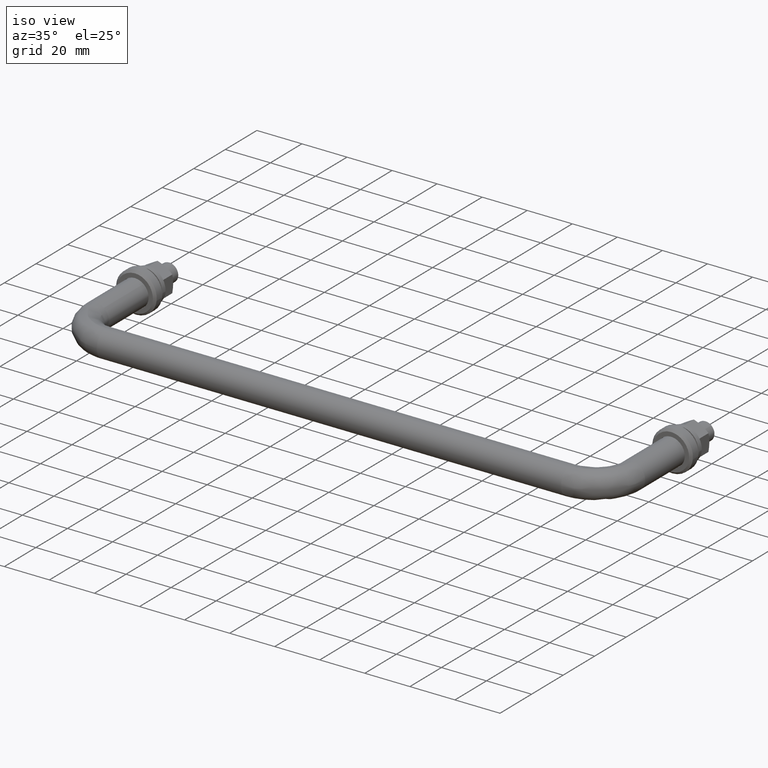
[diagram: clean part render]
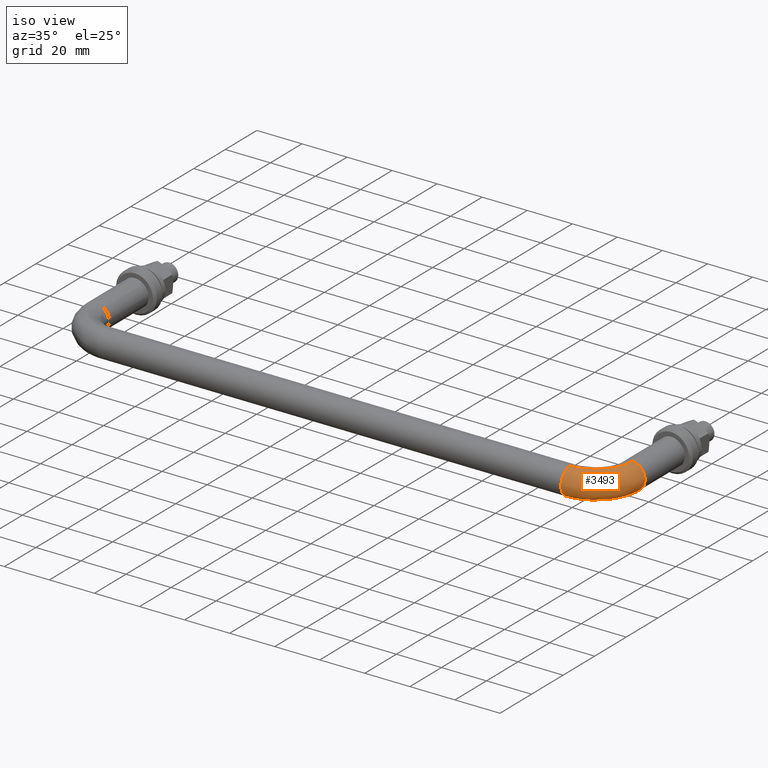
[diagram: same view with one face highlighted and labeled with its STEP entity id]
A machine part, iso view. The second image highlights one B-rep face of the part: STEP entity #3493.
In plain terms, the highlighted face is a freeform B-spline surface patch.
Its self-contained STEP definition (entity closure, byte-faithful):
#2738=CARTESIAN_POINT('',(237.924603760736890,-28.000000000244398,-5.999526265223361));
#2739=VERTEX_POINT('',#2738);
#2740=CARTESIAN_POINT('',(241.735087819829690,-28.0,-4.695648941111300));
#2741=VERTEX_POINT('',#2740);
#2742=CARTESIAN_POINT('',(237.924603760736910,-28.000000000244405,-5.999526265223361));
#2743=CARTESIAN_POINT('',(237.962300392085720,-27.999999999999993,-6.0));
#2744=CARTESIAN_POINT('',(238.0,-28.0,-6.0));
#2745=CARTESIAN_POINT('',(240.095293800534960,-28.0,-5.999999999999999));
#2746=CARTESIAN_POINT('',(241.735087819829660,-27.999999999999996,-4.695648941111300));
#2754=(BOUNDED_CURVE()B_SPLINE_CURVE(2,(#2742,#2743,#2744,#2745,#2746),.UNSPECIFIED.,.F.,.U.)B_SPLINE_CURVE_WITH_KNOTS((3,2,3),(0.247784295923900,0.250000000000000,0.357863877391703),.UNSPECIFIED.)CURVE()GEOMETRIC_REPRESENTATION_ITEM()RATIONAL_B_SPLINE_CURVE((0.994854295649010,0.997404141204852,1.0,0.873629607028178,0.856305618643988))REPRESENTATION_ITEM(''));
#2755=EDGE_CURVE('',#2739,#2741,#2754,.T.);
#2852=CARTESIAN_POINT('',(244.0,-28.0,0.0));
#2853=VERTEX_POINT('',#2852);
#2854=CARTESIAN_POINT('',(241.735087819829690,-28.0,-4.695648941111300));
#2855=CARTESIAN_POINT('',(244.000000000000030,-28.0,-2.894056444899120));
#2856=CARTESIAN_POINT('',(244.0,-28.0,0.0));
#2864=(BOUNDED_CURVE()B_SPLINE_CURVE(2,(#2854,#2855,#2856),.UNSPECIFIED.,.F.,.U.)B_SPLINE_CURVE_WITH_KNOTS((3,3),(0.357863877391703,0.500000000000000),.UNSPECIFIED.)CURVE()GEOMETRIC_REPRESENTATION_ITEM()RATIONAL_B_SPLINE_CURVE((0.856305618643987,0.833477174158370,1.0))REPRESENTATION_ITEM(''));
#2865=EDGE_CURVE('',#2741,#2853,#2864,.T.);
#2899=CARTESIAN_POINT('',(238.418400041081100,-27.999999988341919,5.985394005879900));
#2900=VERTEX_POINT('',#2899);
#2916=CARTESIAN_POINT('',(244.0,-28.0,0.0));
#2917=CARTESIAN_POINT('',(244.000000000000030,-28.000000000000004,5.595220087228519));
#2918=CARTESIAN_POINT('',(238.418400041081070,-27.999999988341916,5.985394005879900));
#2926=(BOUNDED_CURVE()B_SPLINE_CURVE(2,(#2916,#2917,#2918),.UNSPECIFIED.,.F.,.U.)B_SPLINE_CURVE_WITH_KNOTS((3,3),(0.500000000000000,0.737833655983837),.UNSPECIFIED.)CURVE()GEOMETRIC_REPRESENTATION_ITEM()RATIONAL_B_SPLINE_CURVE((1.0,0.721360539826891,0.972879811768448))REPRESENTATION_ITEM(''));
#2927=EDGE_CURVE('',#2853,#2900,#2926,.T.);
#2954=CARTESIAN_POINT('',(222.000000001557710,-43.924603758642313,-5.999526265197038));
#2955=VERTEX_POINT('',#2954);
#2956=CARTESIAN_POINT('',(222.0,-48.467995312664243,-4.004624562428996));
#2957=VERTEX_POINT('',#2956);
#2958=CARTESIAN_POINT('',(222.000000001557710,-43.924603758642306,-5.999526265197038));
#2959=CARTESIAN_POINT('',(222.0,-43.962300389990844,-6.0));
#2960=CARTESIAN_POINT('',(222.0,-44.0,-6.0));
#2961=CARTESIAN_POINT('',(222.000000000000030,-46.679558464065884,-6.0));
#2962=CARTESIAN_POINT('',(221.999999999999970,-48.467995312664243,-4.004624562428996));
#2970=(BOUNDED_CURVE()B_SPLINE_CURVE(2,(#2958,#2959,#2960,#2961,#2962),.UNSPECIFIED.,.F.,.U.)B_SPLINE_CURVE_WITH_KNOTS((3,2,3),(0.247784295801099,0.250000000000000,0.383245997856178),.UNSPECIFIED.)CURVE()GEOMETRIC_REPRESENTATION_ITEM()RATIONAL_B_SPLINE_CURVE((0.994854295366371,0.997404141060982,1.0,0.843892603175575,0.854190693251956))REPRESENTATION_ITEM(''));
#2971=EDGE_CURVE('',#2955,#2957,#2970,.T.);
#3083=CARTESIAN_POINT('',(222.0,-49.999999999999993,0.0));
#3084=VERTEX_POINT('',#3083);
#3085=CARTESIAN_POINT('',(222.0,-48.467995312664250,-4.004624562428996));
#3086=CARTESIAN_POINT('',(222.000000000000030,-50.0,-2.295352845203612));
#3087=CARTESIAN_POINT('',(222.0,-49.999999999999993,0.0));
#3095=(BOUNDED_CURVE()B_SPLINE_CURVE(2,(#3085,#3086,#3087),.UNSPECIFIED.,.F.,.U.)B_SPLINE_CURVE_WITH_KNOTS((3,3),(0.383245997856177,0.500000000000000),.UNSPECIFIED.)CURVE()GEOMETRIC_REPRESENTATION_ITEM()RATIONAL_B_SPLINE_CURVE((0.854190693251956,0.863214178010972,1.0))REPRESENTATION_ITEM(''));
#3096=EDGE_CURVE('',#2957,#3084,#3095,.T.);
#3098=CARTESIAN_POINT('',(221.999999978992090,-44.418400041564851,5.985394005846084));
#3099=VERTEX_POINT('',#3098);
#3100=CARTESIAN_POINT('',(222.0,-49.999999999999993,0.0));
#3101=CARTESIAN_POINT('',(221.999999999999940,-49.999999999999986,5.595220086321878));
#3102=CARTESIAN_POINT('',(221.999999978992070,-44.418400041564858,5.985394005846084));
#3110=(BOUNDED_CURVE()B_SPLINE_CURVE(2,(#3100,#3101,#3102),.UNSPECIFIED.,.F.,.U.)B_SPLINE_CURVE_WITH_KNOTS((3,3),(0.500000000000000,0.737833655956037),.UNSPECIFIED.)CURVE()GEOMETRIC_REPRESENTATION_ITEM()RATIONAL_B_SPLINE_CURVE((1.0,0.721360539859461,0.972879811709648))REPRESENTATION_ITEM(''));
#3111=EDGE_CURVE('',#3084,#3099,#3110,.T.);
#3422=CARTESIAN_POINT('',(222.000000001557650,-43.924603758642291,-5.999526265197038));
#3423=CARTESIAN_POINT('',(237.924603760211170,-43.924603757584578,-5.999526265222896));
#3424=CARTESIAN_POINT('',(237.924603760736890,-28.000000000244398,-5.999526265223361));
#3432=(BOUNDED_CURVE()B_SPLINE_CURVE(2,(#3422,#3423,#3424),.UNSPECIFIED.,.F.,.U.)B_SPLINE_CURVE_WITH_KNOTS((3,3),(-1.734750791455125,-0.265249208373494),.UNSPECIFIED.)CURVE()GEOMETRIC_REPRESENTATION_ITEM()RATIONAL_B_SPLINE_CURVE((0.889029723504402,0.628638946258975,0.889029723565138))REPRESENTATION_ITEM(''));
#3433=EDGE_CURVE('',#2955,#2739,#3432,.T.);
#3438=CARTESIAN_POINT('',(221.999999978992090,-44.418400041564844,5.985394005846084));
#3439=CARTESIAN_POINT('',(238.418399532768860,-44.418399551468433,5.985394043042593));
#3440=CARTESIAN_POINT('',(238.418400041081130,-27.999999988341926,5.985394005879900));
#3448=(BOUNDED_CURVE()B_SPLINE_CURVE(2,(#3438,#3439,#3440),.UNSPECIFIED.,.F.,.U.)B_SPLINE_CURVE_WITH_KNOTS((3,3),(-1.734750794317514,-0.265249206865955),.UNSPECIFIED.)CURVE()GEOMETRIC_REPRESENTATION_ITEM()RATIONAL_B_SPLINE_CURVE((0.869031712796434,0.614498215816966,0.869031712386455))REPRESENTATION_ITEM(''));
#3449=EDGE_CURVE('',#3099,#2900,#3448,.T.);
#3454=CARTESIAN_POINT('',(220.898461216234240,-43.802678033726828,-5.998475907498707));
#3455=CARTESIAN_POINT('',(239.069291295658530,-45.069290820685161,-5.998475907498708));
#3456=CARTESIAN_POINT('',(237.802678003075190,-26.898460776505942,-5.998475907498707));
#3457=CARTESIAN_POINT('',(220.895563655283270,-43.844246450078749,-5.998999566709448));
#3458=CARTESIAN_POINT('',(239.114191495858480,-45.114191019635747,-5.998999566709450));
#3459=CARTESIAN_POINT('',(237.844246419346550,-26.895563214398276,-5.998999566709448));
#3460=CARTESIAN_POINT('',(220.475459634615870,-49.871059738107867,-6.074922504523010));
#3461=CARTESIAN_POINT('',(245.624064783054190,-51.624064125686573,-6.074922504523014));
#3462=CARTESIAN_POINT('',(243.871059695685800,-26.475459026027774,-6.074922504523012));
#3463=CARTESIAN_POINT('',(220.470216798978980,-49.946273470730873,-0.075396239300116));
#3464=CARTESIAN_POINT('',(245.705307032553720,-51.705306372925385,-0.075396239300116));
#3465=CARTESIAN_POINT('',(243.946273428162810,-26.470216188297815,-0.075396239300116));
#3466=CARTESIAN_POINT('',(220.465265709110240,-50.017301817861174,5.590277027038185));
#3467=CARTESIAN_POINT('',(245.782028430333750,-51.782027768570600,5.590277027038183));
#3468=CARTESIAN_POINT('',(244.017301775155370,-26.465265096452683,5.590277027038184));
#3469=CARTESIAN_POINT('',(220.861287224028960,-44.335976215058189,5.988384785871769));
#3470=CARTESIAN_POINT('',(239.645334291988630,-45.645333800986300,5.988384785871768));
#3471=CARTESIAN_POINT('',(238.335976183372200,-26.861286769461021,5.988384785871769));
#3472=CARTESIAN_POINT('',(220.864246130280240,-44.293527738880265,5.991359279660466));
#3473=CARTESIAN_POINT('',(239.599483493573810,-45.599483003847361,5.991359279660466));
#3474=CARTESIAN_POINT('',(238.293527707276580,-26.864245676893532,5.991359279660465));
#3482=(BOUNDED_SURFACE()B_SPLINE_SURFACE(2,2,((#3454,#3457,#3460,#3463,#3466,#3469,#3472),(#3455,#3458,#3461,#3464,#3467,#3470,#3473),(#3456,#3459,#3462,#3465,#3468,#3471,#3474)),.UNSPECIFIED.,.F.,.F.,.U.)B_SPLINE_SURFACE_WITH_KNOTS((3,3),(3,1,2,1,3),(0.0,40.091362849880177),(0.0,0.098496648606305,10.039622145560591,19.583102622636709,19.681604025101979),.UNSPECIFIED.)GEOMETRIC_REPRESENTATION_ITEM()RATIONAL_B_SPLINE_SURFACE(((0.921660517894077,0.919001306567505,0.647951709431553,0.916342095240933,0.658687324863928,0.898176306108275,0.900622898605779),(0.604816650518162,0.603071609631272,0.425202094466791,0.601326568744382,0.432247073437895,0.589405724220915,0.591011239321968),(0.921660529578363,0.919001318218079,0.647951717645915,0.916342106857795,0.658687333214390,0.898176317494842,0.900622910023362)))REPRESENTATION_ITEM('')SURFACE());
#3483=ORIENTED_EDGE('',*,*,#2927,.T.);
#3484=ORIENTED_EDGE('',*,*,#3449,.F.);
#3485=ORIENTED_EDGE('',*,*,#3111,.F.);
#3486=ORIENTED_EDGE('',*,*,#3096,.F.);
#3487=ORIENTED_EDGE('',*,*,#2971,.F.);
#3488=ORIENTED_EDGE('',*,*,#3433,.T.);
#3489=ORIENTED_EDGE('',*,*,#2755,.T.);
#3490=ORIENTED_EDGE('',*,*,#2865,.T.);
#3491=EDGE_LOOP('',(#3483,#3484,#3485,#3486,#3487,#3488,#3489,#3490));
#3492=FACE_OUTER_BOUND('',#3491,.T.);
#3493=ADVANCED_FACE('',(#3492),#3482,.T.);